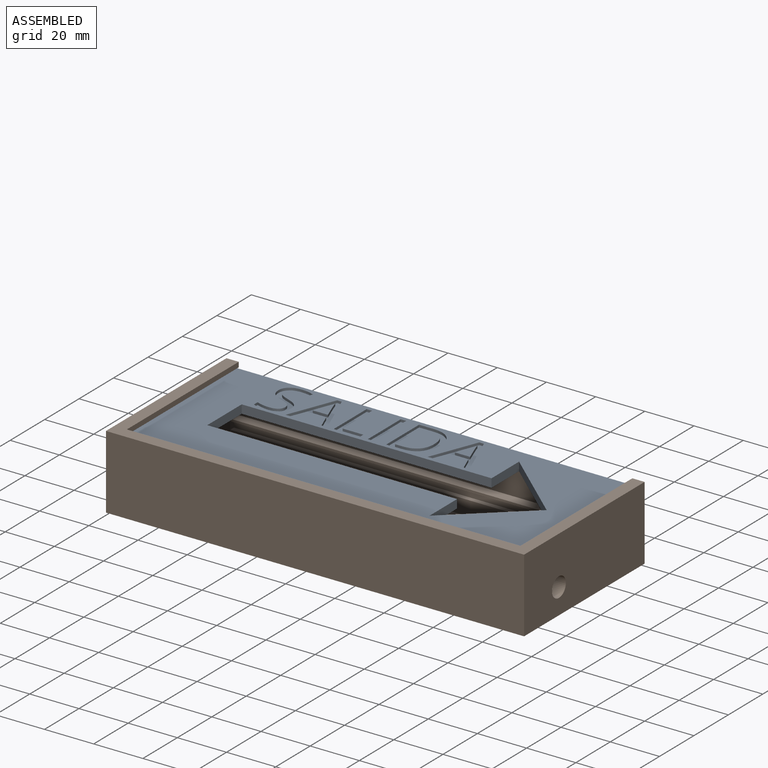
[diagram: assembled view]
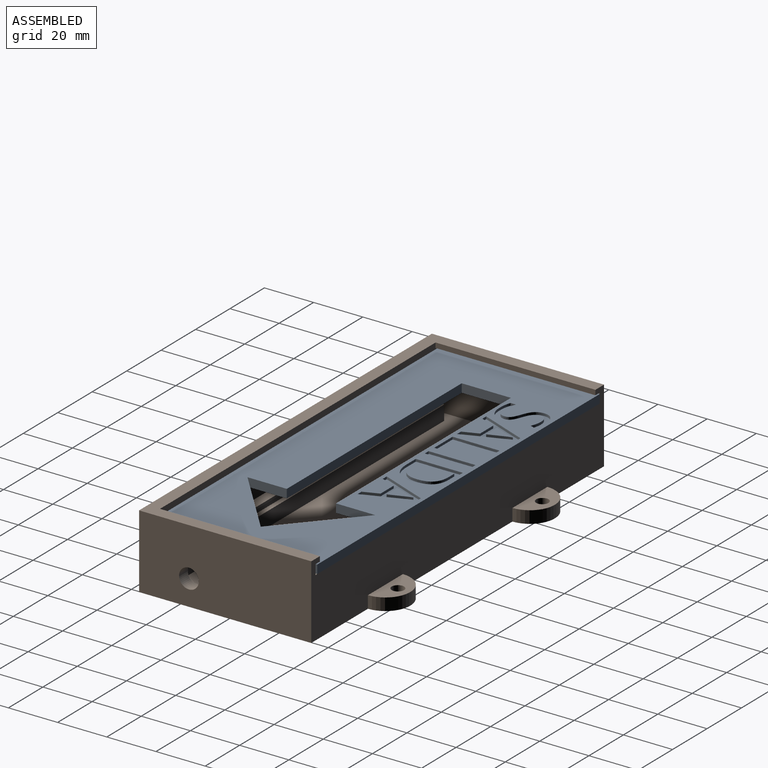
[diagram: assembled view, second angle]
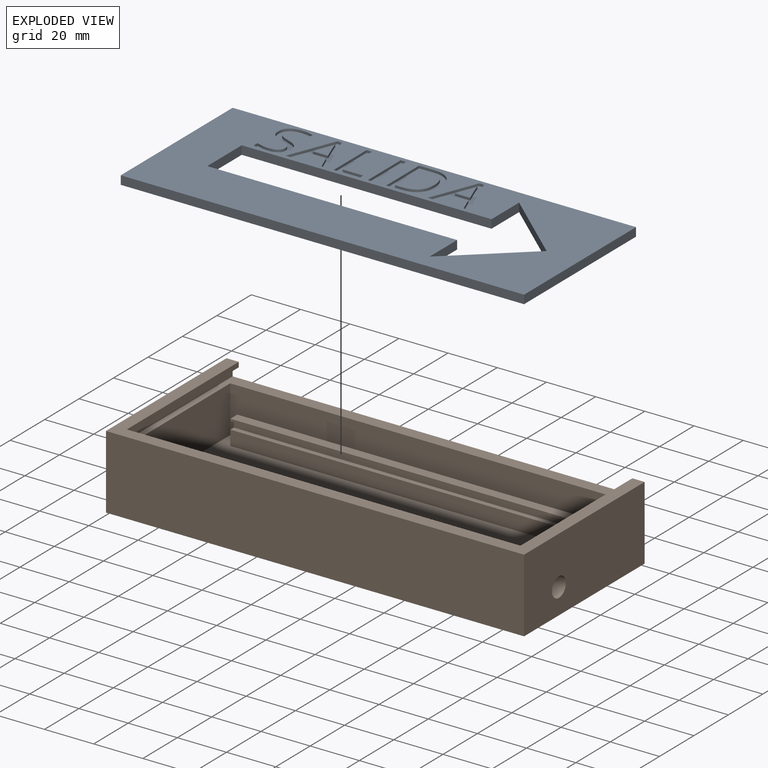
[diagram: exploded view]
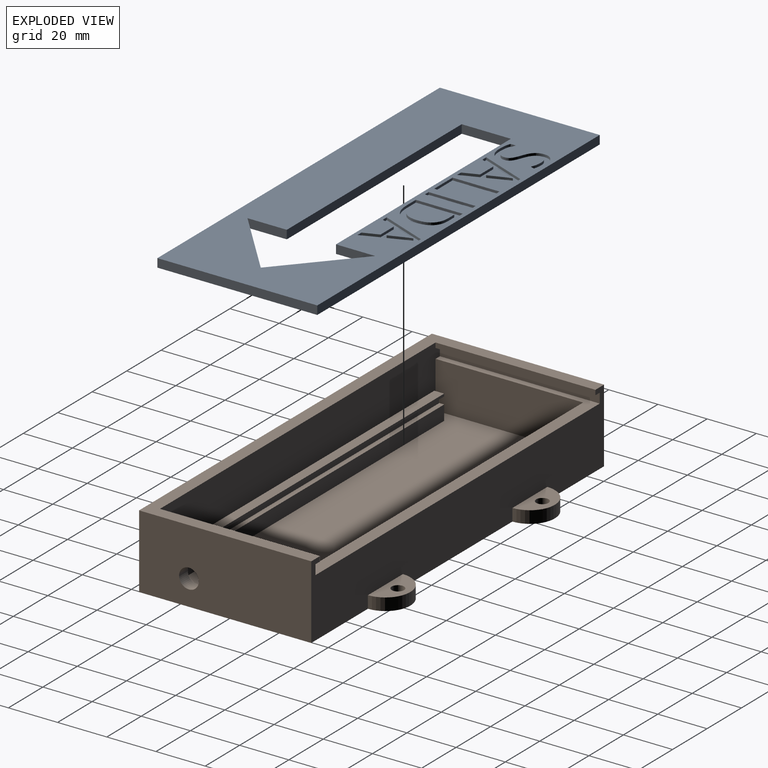
[diagram: exploded view, second angle]
ASSEMBLY  parts=2 mates=2
PART A: 181 faces, bbox 164x65x3.5 mm
  f0: plane 164x65mm, normal (0,0,-1), area 7247.6mm2, adj f2,f3,f4,f5,f6,f7,f8,f9
  f1: plane 164x65mm, normal (0,0,1), area 7181mm2, adj f2,f3,f4,f5,f6,f7,f8,f9
  f2: plane 20x3.5mm, normal (1,0,0), area 70mm2, adj f0,f1,f3,f12
  f3: plane 101.56x3.5mm, normal (0,-1,0), area 355.5mm2, adj f0,f1,f2,f4
  f4: plane 15.99x3.5mm, normal (1,0,0), area 56mm2, adj f0,f1,f3,f5
  f5: plane 29.4x25.99mm, normal (-0.66,-0.75,0), area 137.3mm2, adj f0,f1,f4,f6
  f6: plane 29.4x25.99mm, normal (-0.66,0.75,0), area 137.3mm2, adj f0,f1,f5,f7
  f7: plane 15.99x3.5mm, normal (1,0,0), area 56mm2, adj f0,f1,f6,f12
  f8: plane 65x3.5mm, normal (1,0,0), area 227.5mm2, adj f0,f1,f9,f11
  f9: plane 164x3.5mm, normal (0,1,0), area 574mm2, adj f0,f1,f8,f10
  f10: plane 65x3.5mm, normal (-1,0,0), area 227.5mm2, adj f0,f1,f9,f11
  f11: plane 164x3.5mm, normal (0,-1,0), area 574mm2, adj f0,f1,f8,f10
  f12: plane 101.56x3.5mm, normal (0,1,0), area 355.5mm2, adj f0,f1,f2,f7
  f13: plane 5.92x2.22mm, normal (0.94,0.35,0), area 6.3mm2, adj f14,f25,f26,f94
  f14: plane 6.18x1mm, normal (0,-1,0), area 6.2mm2, adj f13,f15,f26,f94
  f15: plane 5.92x2.25mm, normal (-0.94,0.35,0), area 6.3mm2, adj f14,f16,f26,f94
  f16: extruded ~2.76x1mm, area 2.9mm2, adj f15,f25,f26,f94
  f17: plane 6.08x2.38mm, normal (0.93,0.36,0), area 6.5mm2, adj f1,f18,f24,f26
  f18: plane 2.3x1mm, normal (0,1,0), area 2.3mm2, adj f1,f17,f19,f26
  f19: plane 19.18x7.51mm, normal (-0.93,-0.36,0), area 20.6mm2, adj f1,f18,f20,f26
  f20: plane 1.87x1mm, normal (0,-1,0), area 1.9mm2, adj f1,f19,f21,f26
  f21: plane 19.18x7.55mm, normal (0.93,-0.37,0), area 20.6mm2, adj f1,f20,f22,f26
  f22: plane 2.25x1mm, normal (0,1,0), area 2.2mm2, adj f1,f21,f23,f26
  f23: plane 6.08x2.35mm, normal (-0.93,0.36,0), area 6.5mm2, adj f1,f22,f24,f26
  f24: plane 7.66x1mm, normal (0,1,0), area 7.7mm2, adj f1,f17,f23,f26
  f25: extruded ~2.76x1mm, area 2.9mm2, adj f13,f16,f26,f94
  f26: plane 19.18x16.93mm, normal (0,0,1), area 93.9mm2, adj f13,f14,f15,f16,f17,f18,f19,f20
  f27: plane 19.1x1mm, normal (1,0,0), area 19.1mm2, adj f1,f28,f32,f33
  f28: plane 10.65x1mm, normal (0,1,0), area 10.6mm2, adj f1,f27,f29,f33
  f29: plane 2.01x1mm, normal (-1,0,0), area 2mm2, adj f1,f28,f30,f33
  f30: plane 8.43x1mm, normal (0,-1,0), area 8.4mm2, adj f1,f29,f31,f33
  f31: plane 17.09x1mm, normal (-1,0,0), area 17.1mm2, adj f1,f30,f32,f33
  f32: plane 2.22x1mm, normal (0,-1,0), area 2.2mm2, adj f1,f27,f31,f33
  f33: plane 19.1x10.65mm, normal (0,0,1), area 59.4mm2, adj f27,f28,f29,f30,f31,f32
  f34: plane 19.1x1mm, normal (1,0,0), area 19.1mm2, adj f1,f35,f37,f38
  f35: plane 2.22x1mm, normal (0,1,0), area 2.2mm2, adj f1,f34,f36,f38
  f36: plane 19.1x1mm, normal (-1,0,0), area 19.1mm2, adj f1,f35,f37,f38
  f37: plane 2.22x1mm, normal (0,-1,0), area 2.2mm2, adj f1,f34,f36,f38
  f38: plane 19.1x2.22mm, normal (0,0,1), area 42.4mm2, adj f34,f35,f36,f37
  f39: plane 5.92x2.22mm, normal (0.94,0.35,0), area 6.3mm2, adj f40,f51,f52,f95
  f40: plane 6.18x1mm, normal (0,-1,0), area 6.2mm2, adj f39,f41,f52,f95
  f41: plane 5.92x2.25mm, normal (-0.94,0.35,0), area 6.3mm2, adj f40,f42,f52,f95
  f42: extruded ~2.76x1mm, area 2.9mm2, adj f41,f51,f52,f95
  f43: plane 6.08x2.38mm, normal (0.93,0.36,0), area 6.5mm2, adj f1,f44,f50,f52
  f44: plane 2.3x1mm, normal (0,1,0), area 2.3mm2, adj f1,f43,f45,f52
  f45: plane 19.18x7.51mm, normal (-0.93,-0.36,0), area 20.6mm2, adj f1,f44,f46,f52
  f46: plane 1.87x1mm, normal (0,-1,0), area 1.9mm2, adj f1,f45,f47,f52
  f47: plane 19.18x7.55mm, normal (0.93,-0.37,0), area 20.6mm2, adj f1,f46,f48,f52
  f48: plane 2.25x1mm, normal (0,1,0), area 2.2mm2, adj f1,f47,f49,f52
  f49: plane 6.08x2.35mm, normal (-0.93,0.36,0), area 6.5mm2, adj f1,f48,f50,f52
  f50: plane 7.66x1mm, normal (0,1,0), area 7.7mm2, adj f1,f43,f49,f52
  f51: extruded ~2.76x1mm, area 2.9mm2, adj f39,f42,f52,f95
  f52: plane 19.18x16.93mm, normal (0,0,1), area 93.9mm2, adj f39,f40,f41,f42,f43,f44,f45,f46
  f53: extruded ~5.63x1.88mm, area 6.1mm2, adj f54,f66,f67,f96
  f54: extruded ~5.78x2mm, area 6.3mm2, adj f53,f55,f67,f96
  f55: extruded ~5.97x1.95mm, area 6.4mm2, adj f54,f56,f67,f96
  f56: plane 2.71x1mm, normal (0,-1,0), area 2.7mm2, adj f55,f57,f67,f96
  f57: plane 15.26x1mm, normal (-1,0,0), area 15.3mm2, adj f56,f58,f67,f96
  f58: plane 3.23x1mm, normal (0,1,0), area 3.2mm2, adj f57,f66,f67,f96
  f59: extruded ~7.23x2.57mm, area 7.9mm2, adj f1,f60,f65,f67
  f60: extruded ~6.9x2.47mm, area 7.5mm2, adj f1,f59,f61,f67
  f61: extruded ~6.93x2.47mm, area 7.6mm2, adj f1,f60,f62,f67
  f62: plane 5.85x1mm, normal (0,-1,0), area 5.9mm2, adj f1,f61,f63,f67
  f63: plane 19.1x1mm, normal (1,0,0), area 19.1mm2, adj f1,f62,f64,f67
  f64: plane 5.29x1mm, normal (0,1,0), area 5.3mm2, adj f1,f63,f65,f67
  f65: extruded ~7.39x2.5mm, area 8mm2, adj f1,f59,f64,f67
  f66: extruded ~5.58x1.89mm, area 6mm2, adj f53,f58,f67,f96
  f67: plane 19.1x15.25mm, normal (0,0,1), area 115.4mm2, adj f53,f54,f55,f56,f57,f58,f59,f60
  f68: extruded ~3.93x1.83mm, area 4.5mm2, adj f1,f69,f92,f93
  f69: extruded ~3.19x1.13mm, area 3.5mm2, adj f1,f68,f70,f93
  f70: extruded ~4.14x2.3mm, area 4.8mm2, adj f1,f69,f71,f93
  f71: extruded ~2.66x1.17mm, area 2.9mm2, adj f1,f70,f72,f93
  f72: extruded ~1.24x1.16mm, area 1.7mm2, adj f1,f71,f73,f93
  f73: extruded ~1.63x1mm, area 1.7mm2, adj f1,f72,f74,f93
  f74: extruded ~2.1x1mm, area 2.4mm2, adj f1,f73,f75,f93
  f75: extruded ~2.76x1mm, area 2.9mm2, adj f1,f74,f76,f93
  f76: extruded ~4.6x1mm, area 4.7mm2, adj f1,f75,f77,f93
  f77: plane 1.93x1mm, normal (-0.94,0.34,0), area 2.1mm2, adj f1,f76,f78,f93
  f78: extruded ~5.24x1.05mm, area 5.4mm2, adj f1,f77,f79,f93
  f79: extruded ~4.39x1.31mm, area 4.7mm2, adj f1,f78,f80,f93
  f80: extruded ~3.51x1.66mm, area 4mm2, adj f1,f79,f81,f93
  f81: extruded ~3.41x1.14mm, area 3.7mm2, adj f1,f80,f82,f93
  f82: extruded ~3.81x2.26mm, area 4.5mm2, adj f1,f81,f83,f93
  f83: extruded ~2.84x1.21mm, area 3.1mm2, adj f1,f82,f84,f93
  f84: extruded ~1.33x1.17mm, area 1.8mm2, adj f1,f83,f85,f93
  f85: extruded ~1.62x1mm, area 1.7mm2, adj f1,f84,f86,f93
  f86: extruded ~2.35x1.12mm, area 2.7mm2, adj f1,f85,f87,f93
  f87: extruded ~3.34x1mm, area 3.5mm2, adj f1,f86,f88,f93
  f88: extruded ~2.74x1mm, area 2.8mm2, adj f1,f87,f89,f93
  f89: extruded ~2.56x1mm, area 2.7mm2, adj f1,f88,f90,f93
  f90: plane 2.14x1mm, normal (1,0,0), area 2.1mm2, adj f1,f89,f91,f93
  f91: extruded ~5.23x1mm, area 5.3mm2, adj f1,f90,f92,f93
  f92: extruded ~4.97x1.41mm, area 5.3mm2, adj f1,f68,f91,f93
  f93: plane 19.64x12.02mm, normal (0,0,1), area 84.5mm2, adj f68,f69,f70,f71,f72,f73,f74,f75
  f94: plane 8.68x6.18mm, normal (0,0,1), area 25.6mm2, adj f13,f14,f15,f16,f25
  f95: plane 8.68x6.18mm, normal (0,0,1), area 25.6mm2, adj f39,f40,f41,f42,f51
  f96: plane 15.26x10.68mm, normal (0,0,1), area 143.1mm2, adj f53,f54,f55,f56,f57,f58,f66
  f97: plane 5.62x2.11mm, normal (-0.94,0.35,0), area 6mm2, adj f98,f109,f110,f178
  f98: plane 5.87x1mm, normal (0,-1,0), area 5.9mm2, adj f97,f99,f110,f178
  f99: plane 5.62x2.13mm, normal (0.94,0.35,0), area 6mm2, adj f98,f100,f110,f178
  f100: extruded ~2.62x1mm, area 2.7mm2, adj f99,f109,f110,f178
  f101: plane 5.77x2.26mm, normal (-0.93,0.36,0), area 6.2mm2, adj f0,f102,f108,f110
  f102: plane 2.18x1mm, normal (0,1,0), area 2.2mm2, adj f0,f101,f103,f110
  f103: plane 18.22x7.14mm, normal (0.93,-0.36,0), area 19.6mm2, adj f0,f102,f104,f110
  f104: plane 1.78x1mm, normal (0,-1,0), area 1.8mm2, adj f0,f103,f105,f110
  f105: plane 18.22x7.17mm, normal (-0.93,-0.37,0), area 19.6mm2, adj f0,f104,f106,f110
  f106: plane 2.14x1mm, normal (0,1,0), area 2.1mm2, adj f0,f105,f107,f110
  f107: plane 5.77x2.23mm, normal (0.93,0.36,0), area 6.2mm2, adj f0,f106,f108,f110
  f108: plane 7.27x1mm, normal (0,1,0), area 7.3mm2, adj f0,f101,f107,f110
  f109: extruded ~2.62x1mm, area 2.8mm2, adj f97,f100,f110,f178
  f110: plane 18.22x16.09mm, normal (0,0,-1), area 84.8mm2, adj f97,f98,f99,f100,f101,f102,f103,f104
  f111: plane 18.15x1mm, normal (-1,0,0), area 18.1mm2, adj f0,f112,f116,f117
  f112: plane 10.12x1mm, normal (0,1,0), area 10.1mm2, adj f0,f111,f113,f117
  f113: plane 1.91x1mm, normal (1,0,0), area 1.9mm2, adj f0,f112,f114,f117
  f114: plane 8.01x1mm, normal (0,-1,0), area 8mm2, adj f0,f113,f115,f117
  f115: plane 16.24x1mm, normal (1,0,0), area 16.2mm2, adj f0,f114,f116,f117
  f116: plane 2.11x1mm, normal (0,-1,0), area 2.1mm2, adj f0,f111,f115,f117
  f117: plane 18.15x10.12mm, normal (0,0,-1), area 53.6mm2, adj f111,f112,f113,f114,f115,f116
  f118: plane 18.15x1mm, normal (-1,0,0), area 18.1mm2, adj f0,f119,f121,f122
  f119: plane 2.11x1mm, normal (0,1,0), area 2.1mm2, adj f0,f118,f120,f122
  f120: plane 18.15x1mm, normal (1,0,0), area 18.1mm2, adj f0,f119,f121,f122
  f121: plane 2.11x1mm, normal (0,-1,0), area 2.1mm2, adj f0,f118,f120,f122
  f122: plane 18.15x2.11mm, normal (0,0,-1), area 38.3mm2, adj f118,f119,f120,f121
  f123: plane 5.62x2.11mm, normal (-0.94,0.35,0), area 6mm2, adj f124,f135,f136,f179
  f124: plane 5.87x1mm, normal (0,-1,0), area 5.9mm2, adj f123,f125,f136,f179
  f125: plane 5.62x2.13mm, normal (0.94,0.35,0), area 6mm2, adj f124,f126,f136,f179
  f126: extruded ~2.62x1mm, area 2.7mm2, adj f125,f135,f136,f179
  f127: plane 5.77x2.26mm, normal (-0.93,0.36,0), area 6.2mm2, adj f0,f128,f134,f136
  f128: plane 2.18x1mm, normal (0,1,0), area 2.2mm2, adj f0,f127,f129,f136
  f129: plane 18.22x7.14mm, normal (0.93,-0.36,0), area 19.6mm2, adj f0,f128,f130,f136
  f130: plane 1.78x1mm, normal (0,-1,0), area 1.8mm2, adj f0,f129,f131,f136
  f131: plane 18.22x7.17mm, normal (-0.93,-0.37,0), area 19.6mm2, adj f0,f130,f132,f136
  f132: plane 2.14x1mm, normal (0,1,0), area 2.1mm2, adj f0,f131,f133,f136
  f133: plane 5.77x2.23mm, normal (0.93,0.36,0), area 6.2mm2, adj f0,f132,f134,f136
  f134: plane 7.27x1mm, normal (0,1,0), area 7.3mm2, adj f0,f127,f133,f136
  f135: extruded ~2.62x1mm, area 2.8mm2, adj f123,f126,f136,f179
  f136: plane 18.22x16.09mm, normal (0,0,-1), area 84.8mm2, adj f123,f124,f125,f126,f127,f128,f129,f130
  f137: extruded ~5.35x1.78mm, area 5.8mm2, adj f138,f150,f151,f180
  f138: extruded ~5.49x1.9mm, area 6mm2, adj f137,f139,f151,f180
  f139: extruded ~5.67x1.86mm, area 6.1mm2, adj f138,f140,f151,f180
  f140: plane 2.57x1mm, normal (0,-1,0), area 2.6mm2, adj f139,f141,f151,f180
  f141: plane 14.5x1mm, normal (1,0,0), area 14.5mm2, adj f140,f142,f151,f180
  f142: plane 3.07x1mm, normal (0,1,0), area 3.1mm2, adj f141,f150,f151,f180
  f143: extruded ~6.87x2.44mm, area 7.5mm2, adj f0,f144,f149,f151
  f144: extruded ~6.56x2.35mm, area 7.2mm2, adj f0,f143,f145,f151
  f145: extruded ~6.58x2.35mm, area 7.2mm2, adj f0,f144,f146,f151
  f146: plane 5.56x1mm, normal (0,-1,0), area 5.6mm2, adj f0,f145,f147,f151
  f147: plane 18.15x1mm, normal (-1,0,0), area 18.1mm2, adj f0,f146,f148,f151
  f148: plane 5.03x1mm, normal (0,1,0), area 5mm2, adj f0,f147,f149,f151
  f149: extruded ~7.02x2.38mm, area 7.6mm2, adj f0,f143,f148,f151
  f150: extruded ~5.3x1.8mm, area 5.7mm2, adj f137,f142,f151,f180
  f151: plane 18.15x14.49mm, normal (0,0,-1), area 104.2mm2, adj f137,f138,f139,f140,f141,f142,f143,f144
  f152: extruded ~3.74x1.74mm, area 4.3mm2, adj f0,f153,f176,f177
  f153: extruded ~3.03x1.07mm, area 3.3mm2, adj f0,f152,f154,f177
  f154: extruded ~3.93x2.18mm, area 4.5mm2, adj f0,f153,f155,f177
  f155: extruded ~2.53x1.11mm, area 2.8mm2, adj f0,f154,f156,f177
  f156: extruded ~1.17x1.11mm, area 1.6mm2, adj f0,f155,f157,f177
  f157: extruded ~1.55x1mm, area 1.6mm2, adj f0,f156,f158,f177
  f158: extruded ~2x1mm, area 2.3mm2, adj f0,f157,f159,f177
  f159: extruded ~2.62x1mm, area 2.8mm2, adj f0,f158,f160,f177
  f160: extruded ~4.37x1mm, area 4.5mm2, adj f0,f159,f161,f177
  f161: plane 1.84x1mm, normal (0.94,0.34,0), area 2mm2, adj f0,f160,f162,f177
  f162: extruded ~4.98x1mm, area 5.1mm2, adj f0,f161,f163,f177
  f163: extruded ~4.17x1.24mm, area 4.4mm2, adj f0,f162,f164,f177
  f164: extruded ~3.34x1.58mm, area 3.8mm2, adj f0,f163,f165,f177
  f165: extruded ~3.24x1.09mm, area 3.5mm2, adj f0,f164,f166,f177
  f166: extruded ~3.62x2.15mm, area 4.2mm2, adj f0,f165,f167,f177
  f167: extruded ~2.7x1.15mm, area 2.9mm2, adj f0,f166,f168,f177
  f168: extruded ~1.27x1.11mm, area 1.7mm2, adj f0,f167,f169,f177
  f169: extruded ~1.54x1mm, area 1.6mm2, adj f0,f168,f170,f177
  f170: extruded ~2.23x1.07mm, area 2.6mm2, adj f0,f169,f171,f177
  f171: extruded ~3.18x1mm, area 3.3mm2, adj f0,f170,f172,f177
  f172: extruded ~2.61x1mm, area 2.6mm2, adj f0,f171,f173,f177
  f173: extruded ~2.44x1mm, area 2.5mm2, adj f0,f172,f174,f177
  f174: plane 2.03x1mm, normal (-1,0,0), area 2mm2, adj f0,f173,f175,f177
  f175: extruded ~4.97x1mm, area 5.1mm2, adj f0,f174,f176,f177
  f176: extruded ~4.72x1.34mm, area 5mm2, adj f0,f152,f175,f177
  f177: plane 18.66x11.42mm, normal (0,0,-1), area 76.2mm2, adj f152,f153,f154,f155,f156,f157,f158,f159
  f178: plane 8.24x5.87mm, normal (0,0,-1), area 23.1mm2, adj f97,f98,f99,f100,f109
  f179: plane 8.24x5.87mm, normal (0,0,-1), area 23.1mm2, adj f123,f124,f125,f126,f135
  f180: plane 14.5x10.15mm, normal (0,0,-1), area 129.2mm2, adj f137,f138,f139,f140,f141,f142,f150
PART B: 43 faces, bbox 170x80.1x30 mm
  f0: plane 65x2mm, normal (-1,0,0), area 130mm2, adj f20,f22,f25,f42
  f1: plane 65x2mm, normal (1,0,0), area 130mm2, adj f20,f22,f25,f39
  f2: plane 150x6mm, normal (0,-1,0), area 900mm2, adj f13,f26,f27,f28
  f3: plane 150x6mm, normal (0,1,0), area 900mm2, adj f12,f26,f29,f30
  f4: plane 150x10mm, normal (0,1,0), area 1500mm2, adj f6,f26,f27,f28
  f5: plane 150x1mm, normal (0,-1,0), area 150mm2, adj f6,f14,f27,f28
  f6: plane 150x4mm, normal (0,0,1), area 600mm2, adj f4,f5,f27,f28
  f7: plane 150x1mm, normal (0,1,0), area 150mm2, adj f9,f10,f29,f30
  f8: plane 150x10mm, normal (0,-1,0), area 1500mm2, adj f9,f26,f29,f30
  f9: plane 150x4mm, normal (0,0,1), area 600mm2, adj f7,f8,f29,f30
  f10: plane 150x2mm, normal (0,0.45,-0.89), area 335.4mm2, adj f7,f11,f29,f30
  f11: plane 150x2mm, normal (0,1,0), area 300mm2, adj f10,f12,f29,f30
  f12: plane 150x2mm, normal (0,0,1), area 300mm2, adj f3,f11,f29,f30
  f13: plane 150x2mm, normal (0,0,1), area 300mm2, adj f2,f15,f27,f28
  f14: plane 150x2mm, normal (0,-0.45,-0.89), area 335.4mm2, adj f5,f15,f27,f28
  f15: plane 150x2mm, normal (0,-1,0), area 300mm2, adj f13,f14,f27,f28
  f16: plane 60x19mm, normal (-1,0,0), area 1140mm2, adj f22,f23,f26,f38
  f17: plane 70x30mm, normal (1,0,0), area 2100mm2, adj f18,f20,f21,f25
  f18: plane 170x30mm, normal (0,1,0), area 5100mm2, adj f17,f19,f21,f25
  f19: plane 70x30mm, normal (-1,0,0), area 2049.7mm2, adj f18,f20,f21,f25,f31
  f20: plane 170x30mm, normal (0,-1,0), area 3917.1mm2, adj f0,f1,f17,f19,f21,f25,f33,f34
  f21: plane 170x80.14mm, normal (0,0,-1), area 12184.1mm2, adj f17,f18,f19,f20,f32,f33,f35,f36
  f22: plane 165x25mm, normal (0,-1,0), area 4020mm2, adj f0,f1,f16,f24,f25,f26,f38,f39
  f23: plane 160x19mm, normal (0,1,0), area 3040mm2, adj f16,f24,f26,f38
  f24: plane 60x19mm, normal (1,0,0), area 1089.7mm2, adj f22,f23,f26,f31,f38
  f25: plane 170x70mm, normal (0,0,1), area 1500mm2, adj f0,f1,f17,f18,f19,f20,f22
  f26: plane 160x60mm, normal (0,0,1), area 8400mm2, adj f2,f3,f4,f8,f16,f22,f23,f24
  f27: plane 10x4mm, normal (-1,0,0), area 35mm2, adj f2,f4,f5,f6,f13,f14,f15,f26
  f28: plane 10x4mm, normal (1,0,0), area 35mm2, adj f2,f4,f5,f6,f13,f14,f15,f26
  f29: plane 10x4mm, normal (-1,0,0), area 35mm2, adj f3,f7,f8,f9,f10,f11,f12,f26
  f30: plane 10x4mm, normal (1,0,0), area 35mm2, adj f3,f7,f8,f9,f10,f11,f12,f26
  f31: cylinder r=4mm len=8mm, axis (-1,0,0), area 125.7mm2, adj f19,f24
  f32: cylinder r=2.5mm len=5mm, axis (0,0,-1), area 78.5mm2, adj f21,f34
  f33: cylinder r=10.14mm len=20.29mm, axis (0,0,-1), area 159.4mm2, adj f20,f21,f34
  f34: plane 20.29x10.14mm, normal (0,0,1), area 142mm2, adj f20,f32,f33
  f35: cylinder r=10.14mm len=20.29mm, axis (0,0,-1), area 159.4mm2, adj f20,f21,f37
  f36: cylinder r=2.5mm len=5mm, axis (0,0,-1), area 78.5mm2, adj f21,f37
  f37: plane 20.29x10.14mm, normal (0,0,1), area 142mm2, adj f20,f35,f36
  f38: plane 165x65mm, normal (0,0,1), area 1125mm2, adj f16,f20,f22,f23,f24,f40,f41
  f39: plane 65x2.5mm, normal (0,0,-1), area 162.5mm2, adj f1,f20,f22,f40
  f40: plane 65x4mm, normal (1,0,0), area 260mm2, adj f20,f22,f38,f39
  f41: plane 65x4mm, normal (-1,0,0), area 260mm2, adj f20,f22,f38,f42
  f42: plane 65x2.5mm, normal (0,0,-1), area 162.5mm2, adj f0,f20,f22,f41
PLACE A t=(-76.79,20.72,43.47)mm
PLACE B rot(axis=(0,0,1),180deg) t=(-76.29,18.22,19.47)mm fixed
MATE planar B.f38 <-> A.f0  axis (0,0,1) through (-76.29,42.06,43.47)mm
MATE planar A.f10 <-> B.f41  axis (-1,0,0) through (-158.79,20.72,45.22)mm
